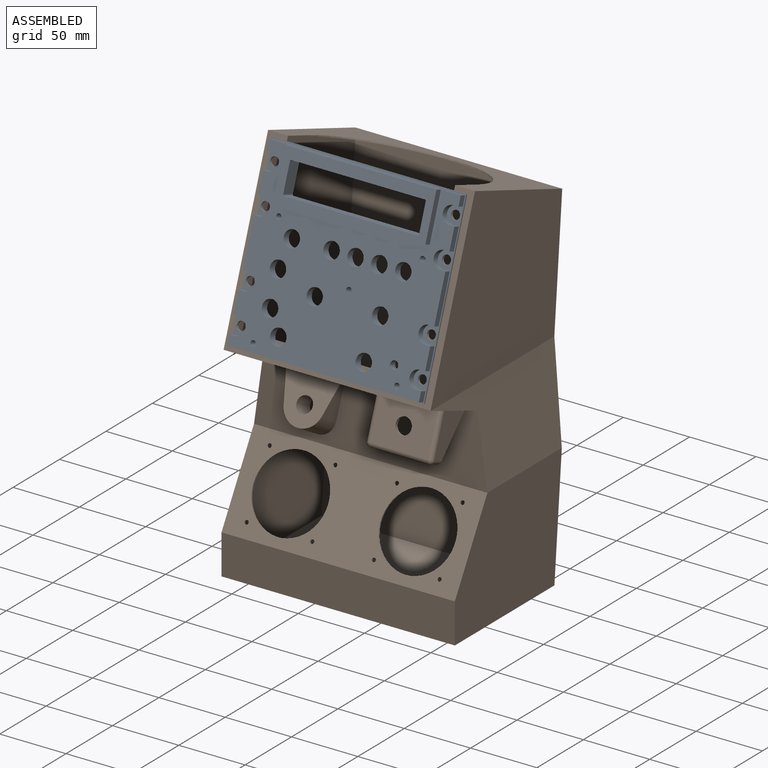
[diagram: assembled view]
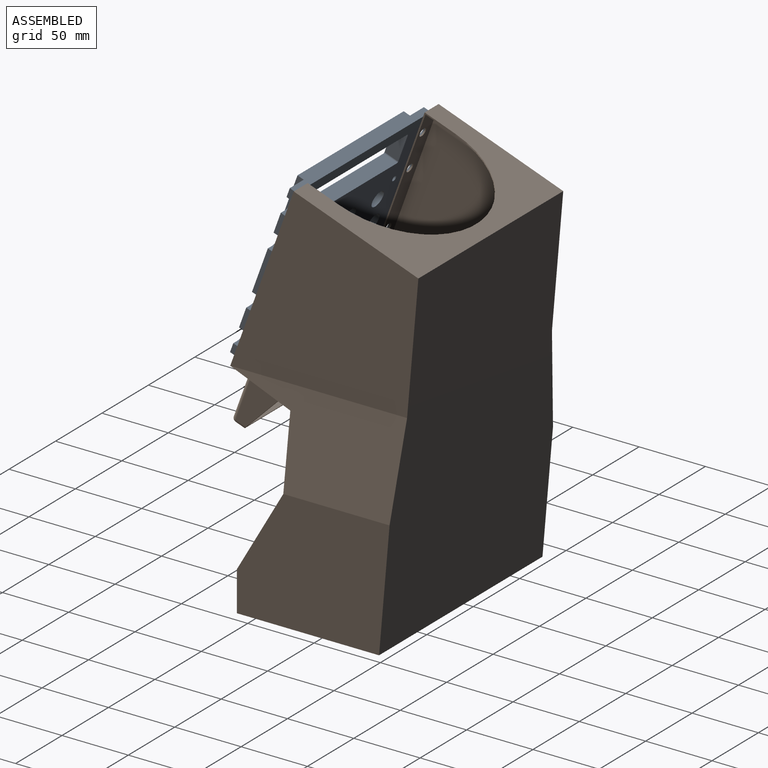
[diagram: assembled view, second angle]
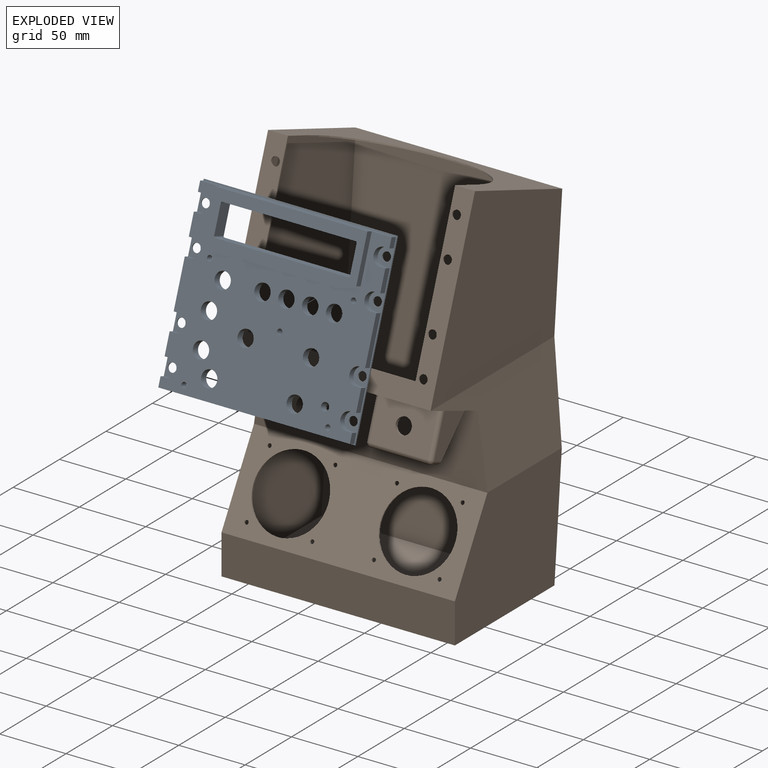
[diagram: exploded view]
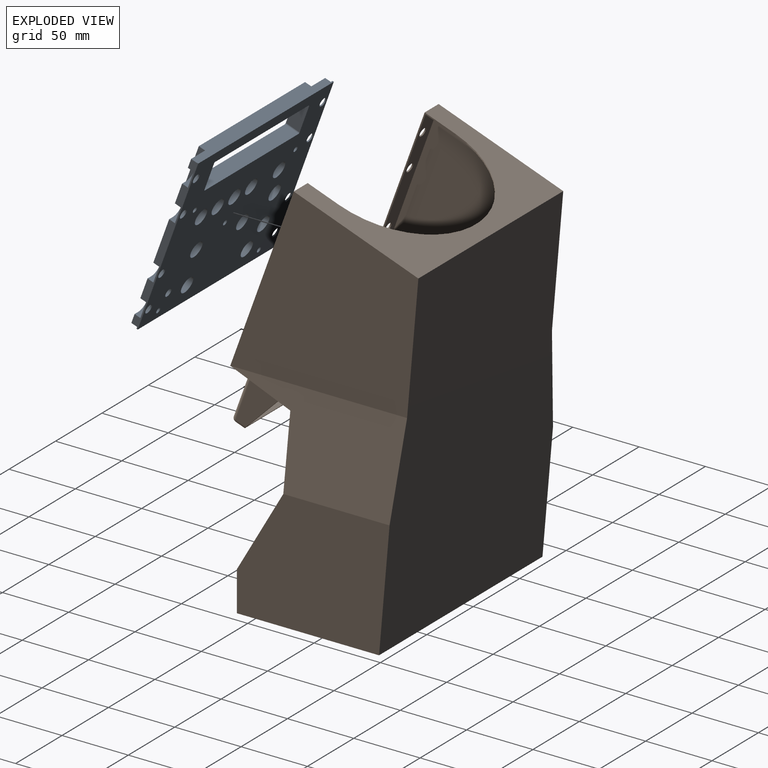
[diagram: exploded view, second angle]
ASSEMBLY  parts=2 mates=3
PART A: 80 faces, bbox 146x51x128.3 mm
  f0: plane 144.4x123.81mm, normal (0,-0.94,0.34), area 12776.2mm2, adj f7,f8,f9,f10,f11,f12,f13,f14
  f1: plane 146x125.31mm, normal (0,-0.94,0.34), area 1089.9mm2, adj f2,f3,f4,f5,f7,f8,f9,f10
  f2: plane 146x0.94mm, normal (0,0.34,0.94), area 146mm2, adj f1,f3,f5,f6
  f3: plane 125.65x46.55mm, normal (-1,0,0), area 133.4mm2, adj f1,f2,f4,f6
  f4: plane 146x0.94mm, normal (0,-0.34,-0.94), area 146mm2, adj f1,f3,f5,f6
  f5: plane 125.65x46.55mm, normal (1,0,0), area 133.4mm2, adj f1,f2,f4,f6
  f6: plane 146x125.31mm, normal (0,0.94,-0.34), area 15515.7mm2, adj f2,f3,f4,f5,f43,f44,f45,f46
  f7: plane 8.42x7.14mm, normal (-1,0,0), area 35.7mm2, adj f0,f1,f8,f42
  f8: plane 144.4x4.7mm, normal (0,-0.34,-0.94), area 722mm2, adj f0,f1,f7,f9
  f9: plane 8.42x7.14mm, normal (1,0,0), area 35.7mm2, adj f0,f1,f8,f10
  f10: plane 4.7x3.96mm, normal (0,0.34,0.94), area 19.8mm2, adj f0,f1,f9,f11
  f11: cylinder r=6.35mm len=13.64mm, axis (0,0.94,-0.34), area 99.7mm2, adj f0,f1,f10,f12
  f12: plane 4.7x3.96mm, normal (0,-0.34,-0.94), area 19.8mm2, adj f0,f1,f11,f13
  f13: plane 16.63x10.13mm, normal (1,0,0), area 79.4mm2, adj f0,f1,f12,f14
  f14: plane 4.7x3.96mm, normal (0,0.34,0.94), area 19.8mm2, adj f0,f1,f13,f15
  f15: cylinder r=6.35mm len=13.64mm, axis (0,0.94,-0.34), area 99.7mm2, adj f0,f1,f14,f16
  f16: plane 4.7x3.96mm, normal (0,-0.34,-0.94), area 19.8mm2, adj f0,f1,f15,f17
  f17: plane 34.53x16.64mm, normal (1,0,0), area 174.6mm2, adj f0,f1,f16,f18
  f18: plane 4.7x3.96mm, normal (0,0.34,0.94), area 19.8mm2, adj f0,f1,f17,f19
  f19: cylinder r=6.35mm len=13.64mm, axis (0,0.94,-0.34), area 99.7mm2, adj f0,f1,f18,f20
  f20: plane 4.7x3.96mm, normal (0,-0.34,-0.94), area 19.8mm2, adj f0,f1,f19,f21
  f21: plane 16.63x10.13mm, normal (1,0,0), area 79.4mm2, adj f0,f1,f20,f22
  f22: plane 4.7x3.96mm, normal (0,0.34,0.94), area 19.8mm2, adj f0,f1,f21,f23
  f23: cylinder r=6.35mm len=13.64mm, axis (0,0.94,-0.34), area 99.7mm2, adj f0,f1,f22,f24
  f24: plane 4.7x3.96mm, normal (0,-0.34,-0.94), area 19.8mm2, adj f0,f1,f23,f25
  f25: plane 8.42x7.14mm, normal (1,0,0), area 35.7mm2, adj f0,f1,f24,f26
  f26: plane 144.4x9.4mm, normal (0,0.34,0.94), area 1294mm2, adj f0,f1,f25,f27,f68,f69,f71
  f27: plane 8.42x7.14mm, normal (-1,0,0), area 35.7mm2, adj f0,f1,f26,f28
  f28: plane 4.7x3.96mm, normal (0,-0.34,-0.94), area 19.8mm2, adj f0,f1,f27,f29
  f29: cylinder r=6.35mm len=13.64mm, axis (0,0.94,-0.34), area 99.7mm2, adj f0,f1,f28,f30
  f30: plane 4.7x3.96mm, normal (0,0.34,0.94), area 19.8mm2, adj f0,f1,f29,f31
  f31: plane 16.63x10.13mm, normal (-1,0,0), area 79.4mm2, adj f0,f1,f30,f32
  f32: plane 4.7x3.96mm, normal (0,-0.34,-0.94), area 19.8mm2, adj f0,f1,f31,f33
  f33: cylinder r=6.35mm len=13.64mm, axis (0,0.94,-0.34), area 99.7mm2, adj f0,f1,f32,f34
  f34: plane 4.7x3.96mm, normal (0,0.34,0.94), area 19.8mm2, adj f0,f1,f33,f35
  f35: plane 34.53x16.64mm, normal (-1,0,0), area 174.6mm2, adj f0,f1,f34,f36
  f36: plane 4.7x3.96mm, normal (0,-0.34,-0.94), area 19.8mm2, adj f0,f1,f35,f37
  f37: cylinder r=6.35mm len=13.64mm, axis (0,0.94,-0.34), area 99.7mm2, adj f0,f1,f36,f38
  f38: plane 4.7x3.96mm, normal (0,0.34,0.94), area 19.8mm2, adj f0,f1,f37,f39
  f39: plane 16.63x10.13mm, normal (-1,0,0), area 79.4mm2, adj f0,f1,f38,f40
  f40: plane 4.7x3.96mm, normal (0,-0.34,-0.94), area 19.8mm2, adj f0,f1,f39,f41
  f41: cylinder r=6.35mm len=13.64mm, axis (0,0.94,-0.34), area 99.7mm2, adj f0,f1,f40,f42
  f42: plane 4.7x3.96mm, normal (0,0.34,0.94), area 19.8mm2, adj f0,f1,f7,f41
  f43: cylinder r=3.24mm len=6.48mm, axis (0,-0.94,0.34), area 20.4mm2, adj f1,f6
  f44: cylinder r=3.24mm len=6.48mm, axis (0,-0.94,0.34), area 20.4mm2, adj f1,f6
  f45: cylinder r=3.24mm len=6.48mm, axis (0,-0.94,0.34), area 20.4mm2, adj f1,f6
  f46: cylinder r=3.24mm len=6.48mm, axis (0,-0.94,0.34), area 20.4mm2, adj f1,f6
  f47: cylinder r=3.24mm len=6.48mm, axis (0,-0.94,0.34), area 20.4mm2, adj f1,f6
  f48: cylinder r=3.24mm len=6.48mm, axis (0,-0.94,0.34), area 20.4mm2, adj f1,f6
  f49: cylinder r=3.24mm len=6.48mm, axis (0,-0.94,0.34), area 20.4mm2, adj f1,f6
  f50: cylinder r=3.24mm len=6.48mm, axis (0,-0.94,0.34), area 20.4mm2, adj f1,f6
  f51: cylinder r=2mm len=7.01mm, axis (0,-0.94,0.34), area 75.4mm2, adj f0,f6
  f52: cylinder r=6mm len=13.33mm, axis (0,-0.94,0.34), area 226.2mm2, adj f0,f6
  f53: cylinder r=6mm len=13.33mm, axis (0,-0.94,0.34), area 226.2mm2, adj f0,f6
  f54: cylinder r=6mm len=13.33mm, axis (0,-0.94,0.34), area 226.2mm2, adj f0,f6
  f55: cylinder r=6mm len=13.33mm, axis (0,-0.94,0.34), area 226.2mm2, adj f0,f6
  f56: cylinder r=2mm len=7.01mm, axis (0,-0.94,0.34), area 75.4mm2, adj f0,f6
  f57: cylinder r=3mm len=7.69mm, axis (0,-0.94,0.34), area 113.1mm2, adj f0,f6
  f58: cylinder r=6mm len=13.33mm, axis (0,-0.94,0.34), area 226.2mm2, adj f0,f6
  f59: cylinder r=6mm len=13.33mm, axis (0,-0.94,0.34), area 226.2mm2, adj f0,f6
  f60: cylinder r=2mm len=7.01mm, axis (0,-0.94,0.34), area 75.4mm2, adj f0,f6
  f61: cylinder r=2mm len=7.01mm, axis (0,-0.94,0.34), area 75.4mm2, adj f0,f6
  f62: cylinder r=2mm len=7.01mm, axis (0,-0.94,0.34), area 75.4mm2, adj f0,f6
  f63: cylinder r=6mm len=13.33mm, axis (0,-0.94,0.34), area 226.2mm2, adj f0,f6
  f64: cylinder r=6mm len=13.33mm, axis (0,-0.94,0.34), area 226.2mm2, adj f0,f6
  f65: cylinder r=6mm len=13.33mm, axis (0,-0.94,0.34), area 226.2mm2, adj f0,f6
  f66: cylinder r=6mm len=13.33mm, axis (0,-0.94,0.34), area 226.2mm2, adj f0,f6
  f67: cylinder r=6mm len=13.33mm, axis (0,-0.94,0.34), area 226.2mm2, adj f0,f6
  f68: plane 34.6x16.67mm, normal (1,0,0), area 175mm2, adj f0,f26,f70,f71
  f69: plane 34.6x16.67mm, normal (-1,0,0), area 175mm2, adj f0,f26,f70,f71
  f70: plane 114.4x4.7mm, normal (0,-0.34,-0.94), area 572mm2, adj f0,f68,f69,f71
  f71: plane 114.4x32.89mm, normal (0,-0.94,0.34), area 1649.7mm2, adj f26,f68,f69,f70,f72,f73,f74,f75
  f72: cylinder r=1mm len=10.68mm, axis (0,-0.94,0.34), area 17.3mm2, adj f6,f71,f73,f79
  f73: plane 100.4x10.34mm, normal (0,0.34,0.94), area 1104.4mm2, adj f6,f71,f72,f74
  f74: cylinder r=1mm len=10.68mm, axis (0,-0.94,0.34), area 17.3mm2, adj f6,f71,f73,f75
  f75: plane 23.5x17.52mm, normal (-1,0,0), area 231mm2, adj f6,f71,f74,f76
  f76: cylinder r=1mm len=10.68mm, axis (0,-0.94,0.34), area 17.3mm2, adj f6,f71,f75,f77
  f77: plane 100.4x10.34mm, normal (0,-0.34,-0.94), area 1104.4mm2, adj f6,f71,f76,f78
  f78: cylinder r=1mm len=10.68mm, axis (0,-0.94,0.34), area 17.3mm2, adj f6,f71,f77,f79
  f79: plane 23.5x17.52mm, normal (1,0,0), area 231mm2, adj f6,f71,f72,f78
PART B: 73 faces, bbox 177.4x143.3x294.7 mm
  f0: plane 156x131.56mm, normal (0,-0.94,0.34), area 5826.2mm2, adj f1,f4,f9,f12,f15,f16,f17,f57
  f1: plane 156x93.97mm, normal (0,0.34,0.94), area 6215.5mm2, adj f0,f3,f9,f12,f15,f17,f31
  f2: plane 154x92.31mm, normal (0,-0.34,-0.94), area 5869.3mm2, adj f15,f17,f18,f19,f25,f28,f31
  f3: plane 259.01x175.97mm, normal (0,1,-0.09), area 43088.1mm2, adj f1,f8,f9,f10,f11,f12,f13,f14
  f4: plane 160.81x46.98mm, normal (0,-0.34,-0.94), area 6608mm2, adj f0,f5,f10,f13,f34,f35,f37,f38
  f5: plane 175.97x53.93mm, normal (0,-1,0), area 7499.9mm2, adj f4,f6,f10,f13,f51,f52,f53
  f6: plane 175.97x60.62mm, normal (0,-0.87,0.5), area 7335.1mm2, adj f5,f7,f11,f14,f32,f33,f65,f66
  f7: plane 175.97x30mm, normal (0,-1,0), area 5279mm2, adj f6,f8,f11,f14
  f8: plane 175.97x107.21mm, normal (0,0,-1), area 18864.8mm2, adj f3,f7,f11,f14
  f9: plane 141.85x131.56mm, normal (-1,0,0), area 13490.4mm2, adj f0,f1,f3,f10
  f10: plane 133.33x71.03mm, normal (-0.99,0,0.14), area 6376.9mm2, adj f3,f4,f5,f9,f11
  f11: plane 115.14x90.62mm, normal (-1,0,0), area 9013.6mm2, adj f3,f6,f7,f8,f10
  f12: plane 141.85x131.56mm, normal (1,0,0), area 13490.4mm2, adj f0,f1,f3,f13
  f13: plane 133.33x71.03mm, normal (0.99,0,0.14), area 6376.9mm2, adj f3,f4,f5,f12,f14
  f14: plane 115.14x90.62mm, normal (1,0,0), area 9013.6mm2, adj f3,f6,f7,f8,f13
  f15: plane 117.8x66.25mm, normal (1,0,0), area 149mm2, adj f0,f1,f2,f16,f18,f31
  f16: plane 126x0.94mm, normal (0,0.34,0.94), area 126mm2, adj f0,f15,f17,f18
  f17: plane 117.8x66.25mm, normal (-1,0,0), area 149mm2, adj f0,f1,f2,f16,f18,f31
  f18: plane 154x129.68mm, normal (0,0.94,-0.34), area 5364.2mm2, adj f2,f15,f16,f17,f20,f25,f28,f57
  f19: plane 257.33x173.97mm, normal (0,-1,0.09), area 42287.4mm2, adj f2,f24,f25,f26,f27,f28,f29,f30
  f20: plane 158.59x46.7mm, normal (0,0.34,0.94), area 7763.4mm2, adj f18,f21,f25,f26,f28,f29
  f21: plane 175.42x56.36mm, normal (0,1,0), area 8999.8mm2, adj f20,f22,f26,f27,f29,f30,f55
  f22: plane 173.97x60.62mm, normal (0,0.87,-0.5), area 7195.1mm2, adj f21,f23,f27,f30,f32,f33,f65,f66
  f23: plane 173.97x28.73mm, normal (0,1,0), area 4998.4mm2, adj f22,f24,f27,f30
  f24: plane 173.97x105.29mm, normal (0,0,1), area 18317mm2, adj f19,f23,f27,f30
  f25: plane 139.51x130.35mm, normal (1,0,0), area 13163.1mm2, adj f2,f18,f19,f20,f26
  f26: plane 129.21x71.03mm, normal (0.99,0,-0.14), area 6197mm2, adj f19,f20,f21,f25,f27
  f27: plane 113.13x89.55mm, normal (1,0,0), area 8712mm2, adj f19,f21,f22,f23,f24,f26
  f28: plane 139.51x130.35mm, normal (-1,0,0), area 13163.1mm2, adj f2,f18,f19,f20,f29
  f29: plane 129.21x71.03mm, normal (-0.99,0,-0.14), area 6197mm2, adj f19,f20,f21,f28,f30
  f30: plane 113.13x89.55mm, normal (-1,0,0), area 8712mm2, adj f19,f21,f22,f23,f24,f29
  f31: cylinder r=63mm len=126mm, axis (0,0.34,0.94), area 197.9mm2, adj f1,f2,f15,f17
  f32: cylinder r=28mm len=56mm, axis (0,-0.87,0.5), area 175.9mm2, adj f6,f22
  f33: cylinder r=28mm len=56mm, axis (0,-0.87,0.5), area 175.9mm2, adj f6,f22
  f34: plane 50.59x27.9mm, normal (0,0.71,-0.71), area 387.4mm2, adj f4,f36,f37,f38,f39,f41,f42,f43
  f35: plane 44x30.07mm, normal (0,-0.94,0.34), area 1294.9mm2, adj f4,f45,f46,f50,f56
  f36: plane 44x6.58mm, normal (0,-0.34,-0.94), area 308mm2, adj f34,f44,f47,f50
  f37: plane 32.94x32.86mm, normal (-1,0,0), area 507.5mm2, adj f4,f34,f44,f45
  f38: plane 32.94x32.86mm, normal (1,0,0), area 507.5mm2, adj f4,f34,f46,f47
  f39: plane 32.33x32.09mm, normal (-1,0,0), area 492.7mm2, adj f34,f40,f42,f43
  f40: plane 45x29.13mm, normal (0,0.94,-0.34), area 1281.9mm2, adj f39,f41,f42,f43,f56
  f41: plane 32.33x32.09mm, normal (1,0,0), area 492.7mm2, adj f34,f40,f42,f43
  f42: plane 45x21.73mm, normal (0,-0.34,-0.94), area 1040.5mm2, adj f34,f39,f40,f41
  f43: plane 45x8.14mm, normal (0,0.34,0.94), area 390mm2, adj f34,f39,f40,f41
  f44: cylinder r=3mm len=8.92mm, axis (0,-0.94,0.34), area 36.3mm2, adj f34,f36,f37,f48
  f45: cylinder r=3mm len=31.1mm, axis (0,0.34,0.94), area 150.8mm2, adj f4,f35,f37,f48
  f46: cylinder r=3mm len=31.1mm, axis (0,-0.34,-0.94), area 150.8mm2, adj f4,f35,f38,f49
  f47: cylinder r=3mm len=8.92mm, axis (0,0.94,-0.34), area 36.3mm2, adj f34,f36,f38,f49
  f48: sphere r=3mm, area 13.4mm2, adj f44,f45,f50
  f49: sphere r=3mm, area 13.4mm2, adj f46,f47,f50
  f50: cylinder r=3mm len=44mm, axis (1,0,0), area 207.3mm2, adj f35,f36,f48,f49
  f51: plane 35.23x15.25mm, normal (0.97,-0.13,-0.22), area 277.7mm2, adj f5,f53,f54
  f52: plane 35.23x15.25mm, normal (-0.97,-0.13,-0.22), area 277.7mm2, adj f5,f53,f54
  f53: cylinder r=15mm len=29.02mm, axis (0,-0.87,0.5), area 859.5mm2, adj f5,f51,f52,f54
  f54: plane 45x36.12mm, normal (0,-0.87,0.5), area 1256.7mm2, adj f4,f51,f52,f53,f55
  f55: cylinder r=6mm len=23.37mm, axis (0,-0.87,0.5), area 629.3mm2, adj f21,f54
  f56: cylinder r=6mm len=12.13mm, axis (0,-0.94,0.34), area 94.2mm2, adj f35,f40
  f57: cylinder r=3.24mm len=6.48mm, axis (0,-0.94,0.34), area 20.4mm2, adj f0,f18
  f58: cylinder r=3.24mm len=6.48mm, axis (0,-0.94,0.34), area 20.4mm2, adj f0,f18
  f59: cylinder r=3.24mm len=6.48mm, axis (0,-0.94,0.34), area 20.4mm2, adj f0,f18
  f60: cylinder r=3.24mm len=6.48mm, axis (0,-0.94,0.34), area 20.4mm2, adj f0,f18
  f61: cylinder r=3.24mm len=6.48mm, axis (0,-0.94,0.34), area 20.4mm2, adj f0,f18
  f62: cylinder r=3.24mm len=6.48mm, axis (0,-0.94,0.34), area 20.4mm2, adj f0,f18
  f63: cylinder r=3.24mm len=6.48mm, axis (0,-0.94,0.34), area 20.4mm2, adj f0,f18
  f64: cylinder r=3.24mm len=6.48mm, axis (0,-0.94,0.34), area 20.4mm2, adj f0,f18
  f65: cylinder r=1.5mm len=3.1mm, axis (0,-0.87,0.5), area 9.4mm2, adj f6,f22
  f66: cylinder r=1.5mm len=3.1mm, axis (0,-0.87,0.5), area 9.4mm2, adj f6,f22
  f67: cylinder r=1.5mm len=3.1mm, axis (0,-0.87,0.5), area 9.4mm2, adj f6,f22
  f68: cylinder r=1.5mm len=3.1mm, axis (0,-0.87,0.5), area 9.4mm2, adj f6,f22
  f69: cylinder r=1.5mm len=3.1mm, axis (0,-0.87,0.5), area 9.4mm2, adj f6,f22
  f70: cylinder r=1.5mm len=3.1mm, axis (0,-0.87,0.5), area 9.4mm2, adj f6,f22
  f71: cylinder r=1.5mm len=3.1mm, axis (0,-0.87,0.5), area 9.4mm2, adj f6,f22
  f72: cylinder r=1.5mm len=3.1mm, axis (0,-0.87,0.5), area 9.4mm2, adj f6,f22
PLACE A t=(-98.48,-94.61,50.93)mm
PLACE B t=(-98.48,-94.61,50.93)mm fixed
MATE revolute A.f23 <-> B.f64  axis (0,0.94,-0.34) through (69.76,-100.63,34.38)mm
MATE revolute A.f29 <-> B.f57  axis (0,0.94,-0.34) through (-66.71,-100.63,34.38)mm
MATE planar A.f6 <-> B.f0  axis (0,0.94,-0.34) through (1.94,-120.55,-20.34)mm
